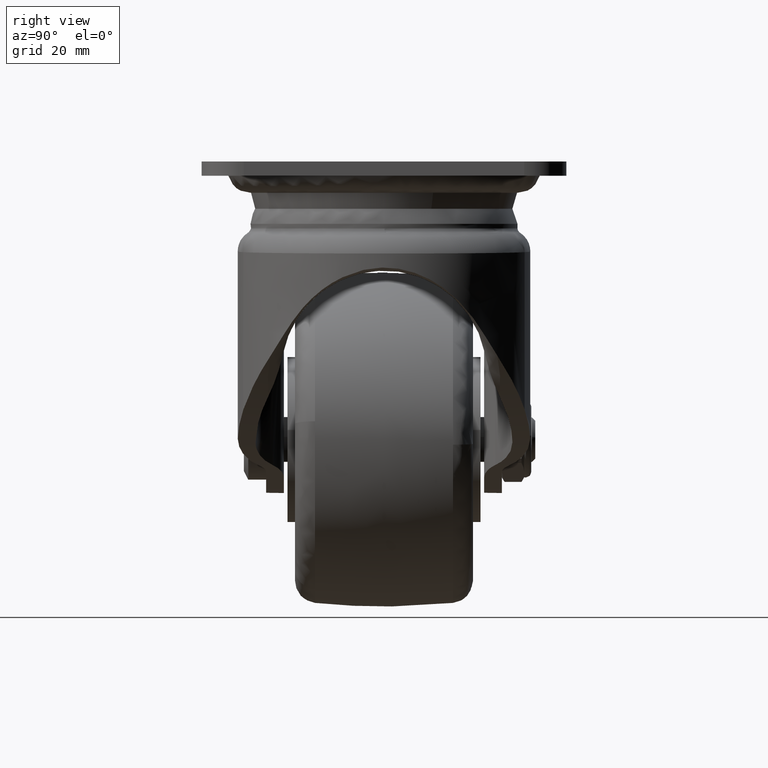
[diagram: clean part render]
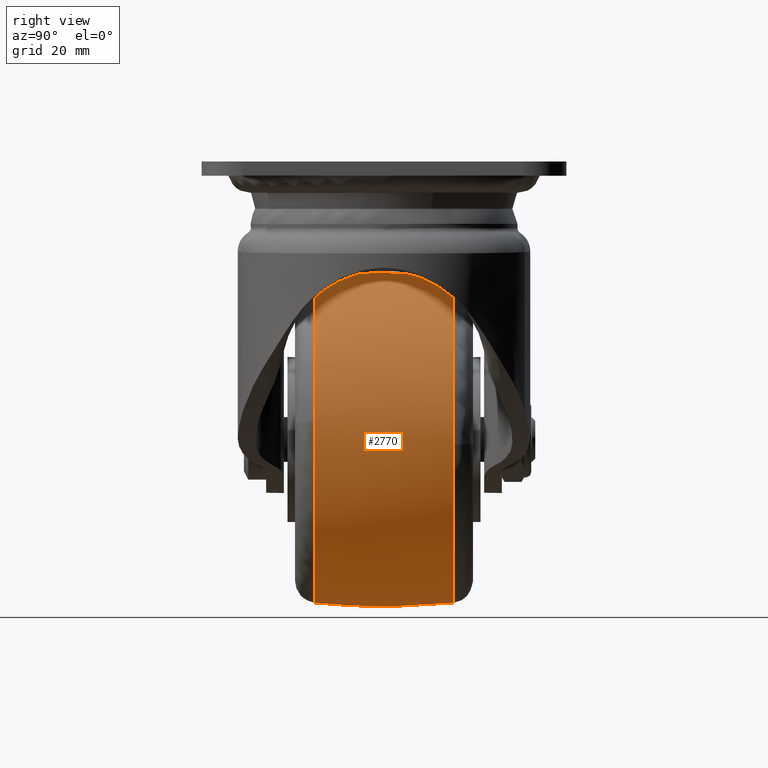
[diagram: same view with one face highlighted and labeled with its STEP entity id]
A machine part, right view. The second image highlights one B-rep face of the part: STEP entity #2770.
In plain terms, the highlighted face is a freeform B-spline surface patch.
Its self-contained STEP definition (entity closure, byte-faithful):
#2325=CARTESIAN_POINT('',(36.460787567893817,-15.517249344604769,-58.358709908976408));
#2326=VERTEX_POINT('',#2325);
#2340=CARTESIAN_POINT('',(0.0,-15.517248015191800,-25.804775498560051));
#2341=VERTEX_POINT('',#2340);
#2342=CARTESIAN_POINT('',(0.0,-15.517248015191800,-25.804775498560051));
#2343=CARTESIAN_POINT('',(32.763247211656662,-15.517247881395054,-25.804775643799065));
#2344=CARTESIAN_POINT('',(36.460787567893824,-15.517249344604769,-58.358709908976408));
#2352=(BOUNDED_CURVE()B_SPLINE_CURVE(2,(#2342,#2343,#2344),.UNSPECIFIED.,.F.,.U.)B_SPLINE_CURVE_WITH_KNOTS((3,3),(0.0,0.230444237317970),.UNSPECIFIED.)CURVE()GEOMETRIC_REPRESENTATION_ITEM()RATIONAL_B_SPLINE_CURVE((1.0,0.730017782299714,0.957762334578281))REPRESENTATION_ITEM(''));
#2353=EDGE_CURVE('',#2341,#2326,#2352,.T.);
#2355=CARTESIAN_POINT('',(-36.449793876648862,-15.517253867070529,-66.736978037823619));
#2356=VERTEX_POINT('',#2355);
#2357=CARTESIAN_POINT('',(-36.449793876648862,-15.517253867070529,-66.736978037823619));
#2358=CARTESIAN_POINT('',(-36.695223912469523,-15.517253716143598,-64.625597341269938));
#2359=CARTESIAN_POINT('',(-36.695223929979399,-15.517253546656450,-62.499999933572582));
#2360=CARTESIAN_POINT('',(-36.695224232260806,-15.517250620717078,-25.804775467270272));
#2361=CARTESIAN_POINT('',(0.0,-15.517248015191800,-25.804775498560051));
#2369=(BOUNDED_CURVE()B_SPLINE_CURVE(2,(#2357,#2358,#2359,#2360,#2361),.UNSPECIFIED.,.F.,.U.)B_SPLINE_CURVE_WITH_KNOTS((3,2,3),(0.730000035775448,0.750000000000000,1.0),.UNSPECIFIED.)CURVE()GEOMETRIC_REPRESENTATION_ITEM()RATIONAL_B_SPLINE_CURVE((0.956886188605427,0.976568584408469,1.0,0.707106781186548,1.0))REPRESENTATION_ITEM(''));
#2370=EDGE_CURVE('',#2356,#2341,#2369,.T.);
#2372=CARTESIAN_POINT('',(0.0,-15.517251615525330,-99.195224126982296));
#2373=VERTEX_POINT('',#2372);
#2387=CARTESIAN_POINT('',(14.671121526901659,-15.517251205764831,-96.134766045578644));
#2388=VERTEX_POINT('',#2387);
#2389=CARTESIAN_POINT('',(14.671121526901663,-15.517251205764829,-96.134766045578644));
#2390=CARTESIAN_POINT('',(7.654772525769912,-15.517251485713848,-99.195222982497015));
#2391=CARTESIAN_POINT('',(0.0,-15.517251615525330,-99.195224126982296));
#2399=(BOUNDED_CURVE()B_SPLINE_CURVE(2,(#2389,#2390,#2391),.UNSPECIFIED.,.F.,.U.)B_SPLINE_CURVE_WITH_KNOTS((3,3),(0.432113195476786,0.500000000000000),.UNSPECIFIED.)CURVE()GEOMETRIC_REPRESENTATION_ITEM()RATIONAL_B_SPLINE_CURVE((0.884125979335987,0.920465661232945,1.0))REPRESENTATION_ITEM(''));
#2400=EDGE_CURVE('',#2388,#2373,#2399,.T.);
#2451=CARTESIAN_POINT('',(36.460787567893824,-15.517249344604769,-58.358709908976408));
#2452=CARTESIAN_POINT('',(36.695222003738365,-15.517249446164758,-60.422719357308317));
#2453=CARTESIAN_POINT('',(36.695222068064879,-15.517249548399310,-62.499999897994982));
#2454=CARTESIAN_POINT('',(36.695222812135462,-15.517250730955590,-86.528092027660406));
#2455=CARTESIAN_POINT('',(14.671121526901663,-15.517251205764829,-96.134766045578644));
#2463=(BOUNDED_CURVE()B_SPLINE_CURVE(2,(#2451,#2452,#2453,#2454,#2455),.UNSPECIFIED.,.F.,.U.)B_SPLINE_CURVE_WITH_KNOTS((3,2,3),(0.230444237317970,0.250000000000000,0.432113195476786),.UNSPECIFIED.)CURVE()GEOMETRIC_REPRESENTATION_ITEM()RATIONAL_B_SPLINE_CURVE((0.957762334578281,0.977088998886833,1.0,0.786641119953603,0.884125979335987))REPRESENTATION_ITEM(''));
#2464=EDGE_CURVE('',#2326,#2388,#2463,.T.);
#2499=CARTESIAN_POINT('',(36.677882718496072,15.517243212550330,-63.627872802966337));
#2500=VERTEX_POINT('',#2499);
#2501=CARTESIAN_POINT('',(0.0,15.517244941485520,-99.195222311844901));
#2502=VERTEX_POINT('',#2501);
#2503=CARTESIAN_POINT('',(36.677882718496065,15.517243212550335,-63.627872802966337));
#2504=CARTESIAN_POINT('',(35.584160869264984,15.517244941485515,-99.195222311844887));
#2505=CARTESIAN_POINT('',(0.0,15.517244941485520,-99.195222311844901));
#2513=(BOUNDED_CURVE()B_SPLINE_CURVE(2,(#2503,#2504,#2505),.UNSPECIFIED.,.F.,.U.)B_SPLINE_CURVE_WITH_KNOTS((3,3),(0.255400343145174,0.500000000000000),.UNSPECIFIED.)CURVE()GEOMETRIC_REPRESENTATION_ITEM()RATIONAL_B_SPLINE_CURVE((0.987619548164038,0.713433676732496,1.0))REPRESENTATION_ITEM(''));
#2514=EDGE_CURVE('',#2500,#2502,#2513,.T.);
#2516=CARTESIAN_POINT('',(-36.449792078363529,15.517247110264440,-66.736977862260062));
#2517=VERTEX_POINT('',#2516);
#2531=CARTESIAN_POINT('',(-36.553342693342657,15.517246422631050,-59.276280948545079));
#2532=VERTEX_POINT('',#2531);
#2533=CARTESIAN_POINT('',(-36.449792078363529,15.517247110264440,-66.736977862260062));
#2534=CARTESIAN_POINT('',(-36.695221714150016,15.517246930600084,-64.625597418361835));
#2535=CARTESIAN_POINT('',(-36.695221347212097,15.517246732650319,-62.500000263879322));
#2536=CARTESIAN_POINT('',(-36.695221068420778,15.517246582252476,-60.885018530437421));
#2537=CARTESIAN_POINT('',(-36.553342693342657,15.517246422631054,-59.276280948545079));
#2545=(BOUNDED_CURVE()B_SPLINE_CURVE(2,(#2533,#2534,#2535,#2536,#2537),.UNSPECIFIED.,.F.,.U.)B_SPLINE_CURVE_WITH_KNOTS((3,2,3),(0.730000035622184,0.750000000000000,0.765281546766577),.UNSPECIFIED.)CURVE()GEOMETRIC_REPRESENTATION_ITEM()RATIONAL_B_SPLINE_CURVE((0.956886188303766,0.976568584228909,1.0,0.982096554316356,0.966381847372691))REPRESENTATION_ITEM(''));
#2546=EDGE_CURVE('',#2517,#2532,#2545,.T.);
#2634=CARTESIAN_POINT('',(0.0,15.517241397116400,-25.804779828798051));
#2635=VERTEX_POINT('',#2634);
#2636=CARTESIAN_POINT('',(0.0,15.517241397116400,-25.804779828798051));
#2637=CARTESIAN_POINT('',(36.695220171201946,15.517241397116408,-25.804779828798054));
#2638=CARTESIAN_POINT('',(36.695220171201953,15.517243169300960,-62.500001070321481));
#2639=CARTESIAN_POINT('',(36.695220171201939,15.517243196542509,-63.064070190866431));
#2640=CARTESIAN_POINT('',(36.677882718496065,15.517243212550335,-63.627872802966337));
#2648=(BOUNDED_CURVE()B_SPLINE_CURVE(2,(#2636,#2637,#2638,#2639,#2640),.UNSPECIFIED.,.F.,.U.)B_SPLINE_CURVE_WITH_KNOTS((3,2,3),(0.0,0.250000000000000,0.255400343145174),.UNSPECIFIED.)CURVE()GEOMETRIC_REPRESENTATION_ITEM()RATIONAL_B_SPLINE_CURVE((1.0,0.707106781186548,1.0,0.993673104454052,0.987619548164038))REPRESENTATION_ITEM(''));
#2649=EDGE_CURVE('',#2635,#2500,#2648,.T.);
#2683=CARTESIAN_POINT('',(-36.553342693342657,15.517246422631054,-59.276280948545079));
#2684=CARTESIAN_POINT('',(-33.601417292216048,15.517243669392945,-25.804779967225684));
#2685=CARTESIAN_POINT('',(0.0,15.517241397116400,-25.804779828798051));
#2693=(BOUNDED_CURVE()B_SPLINE_CURVE(2,(#2683,#2684,#2685),.UNSPECIFIED.,.F.,.U.)B_SPLINE_CURVE_WITH_KNOTS((3,3),(0.765281546766577,1.0),.UNSPECIFIED.)CURVE()GEOMETRIC_REPRESENTATION_ITEM()RATIONAL_B_SPLINE_CURVE((0.966381847372691,0.725010226870192,1.0))REPRESENTATION_ITEM(''));
#2694=EDGE_CURVE('',#2532,#2635,#2693,.T.);
#2699=CARTESIAN_POINT('',(-36.282641195028837,17.057819787561680,-66.717554832738287));
#2700=CARTESIAN_POINT('',(-38.222043254461973,-0.000003390297983,-66.942994168436528));
#2701=CARTESIAN_POINT('',(-36.282640434073301,-17.057826480471185,-66.717554744283532));
#2702=CARTESIAN_POINT('',(-36.526946503292031,17.057819787561687,-64.615853208624685));
#2703=CARTESIAN_POINT('',(-38.479407320367116,-0.000003390297982,-64.728951096074709));
#2704=CARTESIAN_POINT('',(-36.526945737212664,-17.057826480471181,-64.615853164248904));
#2705=CARTESIAN_POINT('',(-36.526946503292031,17.057819787561687,-62.500000000000014));
#2706=CARTESIAN_POINT('',(-38.479407320367109,-0.000003390297979,-62.500000000000000));
#2707=CARTESIAN_POINT('',(-36.526945737212671,-17.057826480471181,-62.500000000000014));
#2708=CARTESIAN_POINT('',(-36.526946503292031,17.057819787561687,-25.973053496707976));
#2709=CARTESIAN_POINT('',(-38.479407320367123,-0.000003390297980,-24.020592679632884));
#2710=CARTESIAN_POINT('',(-36.526945737212678,-17.057826480471185,-25.973054262787322));
#2711=CARTESIAN_POINT('',(0.0,17.057819787561687,-25.973053496707969));
#2712=CARTESIAN_POINT('',(0.0,-0.000003390297979,-24.020592679632884));
#2713=CARTESIAN_POINT('',(0.0,-17.057826480471181,-25.973054262787322));
#2714=CARTESIAN_POINT('',(36.526946503292031,17.057819787561687,-25.973053496707976));
#2715=CARTESIAN_POINT('',(38.479407320367123,-0.000003390297980,-24.020592679632884));
#2716=CARTESIAN_POINT('',(36.526945737212678,-17.057826480471185,-25.973054262787322));
#2717=CARTESIAN_POINT('',(36.526946503292031,17.057819787561687,-62.500000000000014));
#2718=CARTESIAN_POINT('',(38.479407320367109,-0.000003390297979,-62.500000000000000));
#2719=CARTESIAN_POINT('',(36.526945737212671,-17.057826480471181,-62.500000000000014));
#2720=CARTESIAN_POINT('',(36.526946503292031,17.057819787561687,-99.026946503292024));
#2721=CARTESIAN_POINT('',(38.479407320367123,-0.000003390297980,-100.979407320367120));
#2722=CARTESIAN_POINT('',(36.526945737212678,-17.057826480471185,-99.026945737212685));
#2723=CARTESIAN_POINT('',(0.0,17.057819787561687,-99.026946503292038));
#2724=CARTESIAN_POINT('',(0.0,-0.000003390297979,-100.979407320367100));
#2725=CARTESIAN_POINT('',(0.0,-17.057826480471181,-99.026945737212671));
#2733=(BOUNDED_SURFACE()B_SPLINE_SURFACE(2,2,((#2699,#2702,#2705,#2708,#2711,#2714,#2717,#2720,#2723),(#2700,#2703,#2706,#2709,#2712,#2715,#2718,#2721,#2724),(#2701,#2704,#2707,#2710,#2713,#2716,#2719,#2722,#2725)),.UNSPECIFIED.,.F.,.F.,.U.)B_SPLINE_SURFACE_WITH_KNOTS((3,3),(3,2,2,2,3),(0.0,34.226660885250212),(0.0,4.970561711536941,67.102596067501125,129.234630423465290,191.366664779429500),.UNSPECIFIED.)GEOMETRIC_REPRESENTATION_ITEM()RATIONAL_B_SPLINE_SURFACE(((0.839999910101653,0.857278070373645,0.877847307975337,0.620731784315716,0.877847307975337,0.620731784315716,0.877847307975337,0.620731784315716,0.877847307975337),(0.834550810027260,0.851716886448658,0.872152690900182,0.616705081965613,0.872152690900182,0.616705081965613,0.872152690900182,0.616705081965613,0.872152690900182),(0.839999912253655,0.857278072569913,0.877847310224300,0.620731785905974,0.877847310224300,0.620731785905974,0.877847310224300,0.620731785905974,0.877847310224300)))REPRESENTATION_ITEM('')SURFACE());
#2734=ORIENTED_EDGE('',*,*,#2370,.T.);
#2735=ORIENTED_EDGE('',*,*,#2353,.T.);
#2736=ORIENTED_EDGE('',*,*,#2464,.T.);
#2737=ORIENTED_EDGE('',*,*,#2400,.T.);
#2738=CARTESIAN_POINT('',(0.0,15.517244941485517,-99.195222311844915));
#2739=CARTESIAN_POINT('',(0.0,-0.000003371721056,-100.809115346414560));
#2740=CARTESIAN_POINT('',(0.0,-15.517251615525325,-99.195224126982296));
#2748=(BOUNDED_CURVE()B_SPLINE_CURVE(2,(#2738,#2739,#2740),.UNSPECIFIED.,.F.,.U.)B_SPLINE_CURVE_WITH_KNOTS((3,3),(0.431391331764442,0.568608696755920),.UNSPECIFIED.)CURVE()GEOMETRIC_REPRESENTATION_ITEM()RATIONAL_B_SPLINE_CURVE((0.877353574678528,0.872646424343099,0.877353576635273))REPRESENTATION_ITEM(''));
#2749=EDGE_CURVE('',#2502,#2373,#2748,.T.);
#2750=ORIENTED_EDGE('',*,*,#2749,.F.);
#2751=ORIENTED_EDGE('',*,*,#2514,.F.);
#2752=ORIENTED_EDGE('',*,*,#2649,.F.);
#2753=ORIENTED_EDGE('',*,*,#2694,.F.);
#2754=ORIENTED_EDGE('',*,*,#2546,.F.);
#2755=CARTESIAN_POINT('',(-36.449792078363522,15.517247110264439,-66.736977862260062));
#2756=CARTESIAN_POINT('',(-38.052891270136683,-0.000003413551862,-66.923324814073879));
#2757=CARTESIAN_POINT('',(-36.449793876648855,-15.517253867070533,-66.736978037823619));
#2765=(BOUNDED_CURVE()B_SPLINE_CURVE(2,(#2755,#2756,#2757),.UNSPECIFIED.,.F.,.U.)B_SPLINE_CURVE_WITH_KNOTS((3,3),(0.431391322123576,0.568608706764706),.UNSPECIFIED.)CURVE()GEOMETRIC_REPRESENTATION_ITEM()RATIONAL_B_SPLINE_CURVE((0.839527456987766,0.835023248897621,0.839527458884302))REPRESENTATION_ITEM(''));
#2766=EDGE_CURVE('',#2517,#2356,#2765,.T.);
#2767=ORIENTED_EDGE('',*,*,#2766,.T.);
#2768=EDGE_LOOP('',(#2734,#2735,#2736,#2737,#2750,#2751,#2752,#2753,#2754,#2767));
#2769=FACE_OUTER_BOUND('',#2768,.T.);
#2770=ADVANCED_FACE('',(#2769),#2733,.T.);